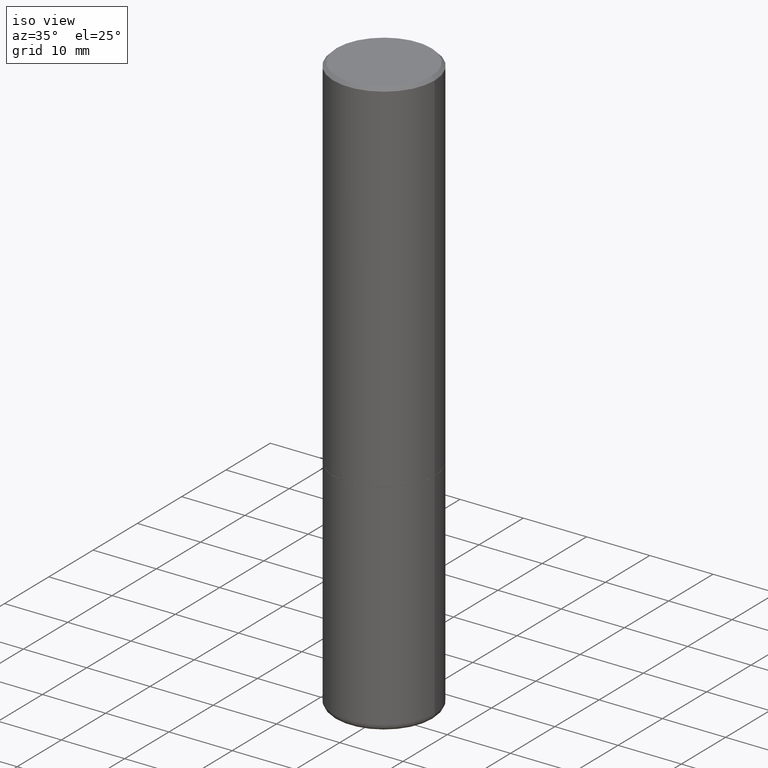
[diagram: clean part render]
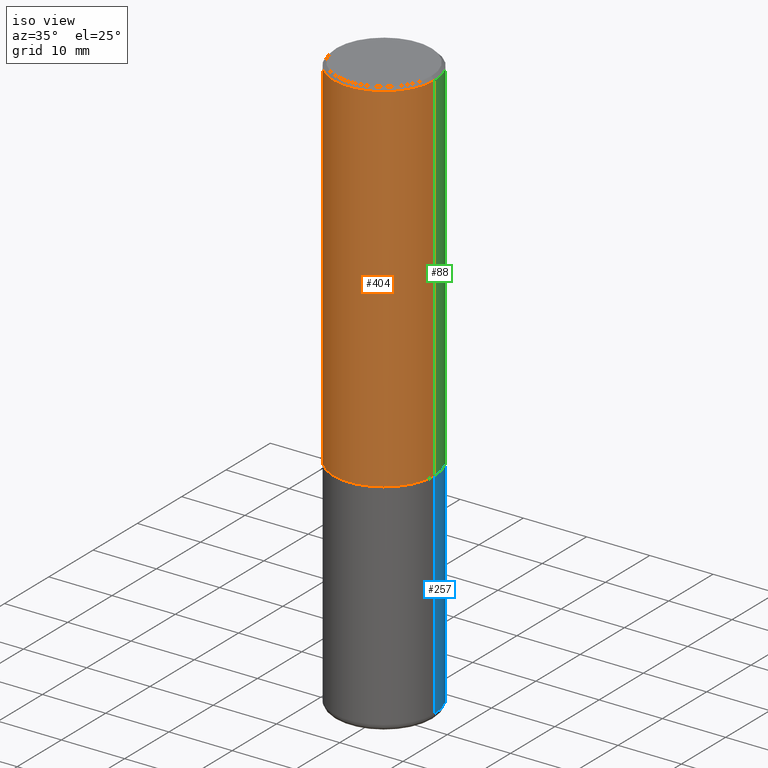
[diagram: same view with three faces highlighted in distinct colors, each labeled with its STEP entity id]
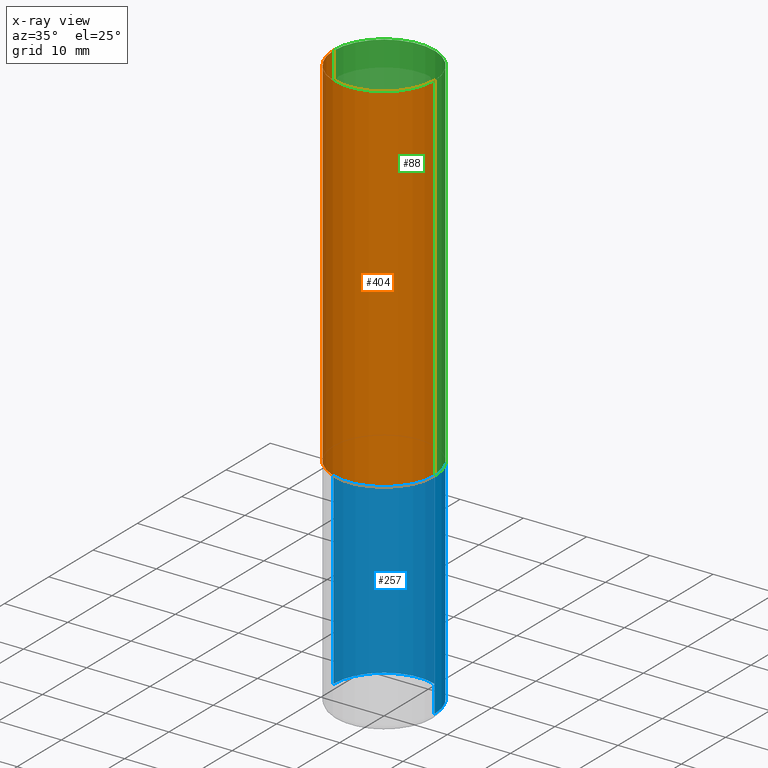
[diagram: x-ray of the same camera — body ghosted, the three highlighted faces saturated]
A machine part, iso view with three faces highlighted in distinct colors.
The next image is the same camera in x-ray (body ghosted, the three faces saturated) — at least one of them is partly hidden behind the body in this view.
Their STEP definitions:

[orange] entity #404 — the highlighted cylindrical surface (partial cylindrical patch) has radius 7.9997 mm, axis along (-0, 0, 1).
#1 = EDGE_CURVE ( 'NONE', #72, #77, #89, .T. ) ;
#6 = FACE_OUTER_BOUND ( 'NONE', #403, .T. ) ;
#7 = VERTEX_POINT ( 'NONE', #310 ) ;
#15 = VECTOR ( 'NONE', #311, 39.37007874015748143 ) ;
#35 = DIRECTION ( 'NONE',  ( 1.000000000000000000, -6.982962677686266711E-15, 0.000000000000000000 ) ) ;
#39 = ORIENTED_EDGE ( 'NONE', *, *, #171, .T. ) ;
#45 = ORIENTED_EDGE ( 'NONE', *, *, #1, .F. ) ;
#50 = VERTEX_POINT ( 'NONE', #415 ) ;
#65 = CARTESIAN_POINT ( 'NONE',  ( 4.890937612370289799E-31, -6.982962677686315028E-17, -0.02000000000000006981 ) ) ;
#69 = AXIS2_PLACEMENT_3D ( 'NONE', #65, #263, #35 ) ;
#72 = VERTEX_POINT ( 'NONE', #380 ) ;
#77 = VERTEX_POINT ( 'NONE', #288 ) ;
#89 = LINE ( 'NONE', #191, #15 ) ;
#97 = CIRCLE ( 'NONE', #69, 0.3149500000000000077 ) ;
#103 = DIRECTION ( 'NONE',  ( -2.445468806185136597E-29, 3.491481338843145583E-15, 1.000000000000000000 ) ) ;
#119 = AXIS2_PLACEMENT_3D ( 'NONE', #184, #181, #408 ) ;
#133 = ORIENTED_EDGE ( 'NONE', *, *, #157, .T. ) ;
#135 = CARTESIAN_POINT ( 'NONE',  ( 0.000000000000000000, 0.000000000000000000, 0.000000000000000000 ) ) ;
#139 = VECTOR ( 'NONE', #344, 39.37007874015748143 ) ;
#144 = LINE ( 'NONE', #151, #139 ) ;
#148 = CIRCLE ( 'NONE', #119, 0.3149500000000002853 ) ;
#151 = CARTESIAN_POINT ( 'NONE',  ( 0.3149500000000001743, -2.199284095337290660E-15, 1.535751875536930690E-29 ) ) ;
#157 = EDGE_CURVE ( 'NONE', #72, #7, #148, .T. ) ;
#171 = EDGE_CURVE ( 'NONE', #7, #50, #144, .T. ) ;
#179 = AXIS2_PLACEMENT_3D ( 'NONE', #135, #103, #237 ) ;
#181 = DIRECTION ( 'NONE',  ( -2.445468806185136597E-29, 3.491481338843145583E-15, 1.000000000000000000 ) ) ;
#184 = CARTESIAN_POINT ( 'NONE',  ( 5.485186532273261485E-29, -7.831392643025175821E-15, -2.242999999999999883 ) ) ;
#191 = CARTESIAN_POINT ( 'NONE',  ( -0.3149500000000001743, 2.237854346276436774E-15, -1.549218606675783237E-29 ) ) ;
#237 = DIRECTION ( 'NONE',  ( 1.000000000000000000, -6.982962677686265922E-15, 4.876176775795935232E-29 ) ) ;
#263 = DIRECTION ( 'NONE',  ( -2.445468806185136597E-29, 3.491481338843145583E-15, 1.000000000000000000 ) ) ;
#288 = CARTESIAN_POINT ( 'NONE',  ( -0.3149500000000000077, 2.129454468560426573E-15, -0.02000000000000006981 ) ) ;
#310 = CARTESIAN_POINT ( 'NONE',  ( 0.3149500000000002853, -1.003067673836246727E-14, -2.242999999999999883 ) ) ;
#311 = DIRECTION ( 'NONE',  ( -2.445468806185136877E-29, 3.491481338843145188E-15, 1.000000000000000000 ) ) ;
#320 = EDGE_CURVE ( 'NONE', #77, #50, #97, .T. ) ;
#344 = DIRECTION ( 'NONE',  ( -2.445468806185136877E-29, 3.491481338843145188E-15, 1.000000000000000000 ) ) ;
#366 = CYLINDRICAL_SURFACE ( 'NONE', #179, 0.3149500000000001743 ) ;
#380 = CARTESIAN_POINT ( 'NONE',  ( -0.3149500000000002853, -1.712756788624580222E-15, -2.242999999999999883 ) ) ;
#403 = EDGE_LOOP ( 'NONE', ( #45, #133, #39, #406 ) ) ;
#404 = ADVANCED_FACE ( 'NONE', ( #6 ), #366, .T. ) ;
#406 = ORIENTED_EDGE ( 'NONE', *, *, #320, .F. ) ;
#408 = DIRECTION ( 'NONE',  ( 1.000000000000000000, -6.982962677686267499E-15, 0.000000000000000000 ) ) ;
#415 = CARTESIAN_POINT ( 'NONE',  ( 0.3149500000000000077, -2.230543471175007450E-15, -0.02000000000000006981 ) ) ;

[blue] entity #257 — the highlighted cylindrical surface (partial cylindrical patch) has radius 7.9997 mm, axis along (-0, 0, 1).
#2 = LINE ( 'NONE', #32, #104 ) ;
#14 = EDGE_CURVE ( 'NONE', #284, #117, #289, .T. ) ;
#20 = DIRECTION ( 'NONE',  ( -2.445468806185136877E-29, 3.491481338843145188E-15, 1.000000000000000000 ) ) ;
#24 = CARTESIAN_POINT ( 'NONE',  ( 5.487632001079445967E-29, -7.834884124364017250E-15, -2.243999999999999773 ) ) ;
#32 = CARTESIAN_POINT ( 'NONE',  ( 0.3149500000000000077, -2.199284095337289871E-15, 1.535751875536930130E-29 ) ) ;
#33 = DIRECTION ( 'NONE',  ( -2.445468806185136597E-29, 3.491481338843145583E-15, 1.000000000000000000 ) ) ;
#43 = VECTOR ( 'NONE', #20, 39.37007874015748143 ) ;
#47 = ORIENTED_EDGE ( 'NONE', *, *, #76, .T. ) ;
#76 = EDGE_CURVE ( 'NONE', #208, #175, #244, .T. ) ;
#92 = DIRECTION ( 'NONE',  ( -2.445468806185136597E-29, 3.491481338843145583E-15, 1.000000000000000000 ) ) ;
#104 = VECTOR ( 'NONE', #294, 39.37007874015748143 ) ;
#106 = ORIENTED_EDGE ( 'NONE', *, *, #154, .T. ) ;
#111 = AXIS2_PLACEMENT_3D ( 'NONE', #24, #352, #213 ) ;
#117 = VERTEX_POINT ( 'NONE', #280 ) ;
#123 = AXIS2_PLACEMENT_3D ( 'NONE', #342, #92, #156 ) ;
#127 = FACE_OUTER_BOUND ( 'NONE', #206, .T. ) ;
#130 = CYLINDRICAL_SURFACE ( 'NONE', #255, 0.3149500000000000077 ) ;
#154 = EDGE_CURVE ( 'NONE', #175, #117, #321, .T. ) ;
#155 = CARTESIAN_POINT ( 'NONE',  ( 0.3149500000000000077, -1.003416821970130712E-14, -2.243999999999999773 ) ) ;
#156 = DIRECTION ( 'NONE',  ( 1.000000000000000000, -6.982962677686263555E-15, 0.000000000000000000 ) ) ;
#175 = VERTEX_POINT ( 'NONE', #373 ) ;
#206 = EDGE_LOOP ( 'NONE', ( #47, #106, #363, #396 ) ) ;
#208 = VERTEX_POINT ( 'NONE', #292 ) ;
#213 = DIRECTION ( 'NONE',  ( 1.000000000000000000, -6.982962677686266711E-15, 0.000000000000000000 ) ) ;
#225 = DIRECTION ( 'NONE',  ( 1.000000000000000000, -6.982962677686266711E-15, 4.876176775795936353E-29 ) ) ;
#244 = CIRCLE ( 'NONE', #123, 0.3149500000000000077 ) ;
#255 = AXIS2_PLACEMENT_3D ( 'NONE', #327, #33, #225 ) ;
#257 = ADVANCED_FACE ( 'NONE', ( #127 ), #130, .T. ) ;
#275 = EDGE_CURVE ( 'NONE', #208, #284, #2, .T. ) ;
#280 = CARTESIAN_POINT ( 'NONE',  ( -0.3149500000000000077, -7.933878238175299817E-15, -2.243999999999999773 ) ) ;
#284 = VERTEX_POINT ( 'NONE', #155 ) ;
#289 = CIRCLE ( 'NONE', #111, 0.3149500000000000077 ) ;
#292 = CARTESIAN_POINT ( 'NONE',  ( 0.3149500000000000077, -1.470786513987673949E-14, -3.582599999999999785 ) ) ;
#294 = DIRECTION ( 'NONE',  ( -2.445468806185136877E-29, 3.491481338843145188E-15, 1.000000000000000000 ) ) ;
#321 = LINE ( 'NONE', #346, #43 ) ;
#327 = CARTESIAN_POINT ( 'NONE',  ( 0.000000000000000000, 0.000000000000000000, 0.000000000000000000 ) ) ;
#342 = CARTESIAN_POINT ( 'NONE',  ( 8.761136545038868759E-29, -1.250858104453945120E-14, -3.582599999999999785 ) ) ;
#346 = CARTESIAN_POINT ( 'NONE',  ( -0.3149500000000000077, 2.237854346276435590E-15, -1.549218606675782676E-29 ) ) ;
#352 = DIRECTION ( 'NONE',  ( -2.445468806185136597E-29, 3.491481338843145583E-15, 1.000000000000000000 ) ) ;
#363 = ORIENTED_EDGE ( 'NONE', *, *, #14, .F. ) ;
#373 = CARTESIAN_POINT ( 'NONE',  ( -0.3149500000000000077, -1.027072669826301679E-14, -3.582599999999999785 ) ) ;
#396 = ORIENTED_EDGE ( 'NONE', *, *, #275, .F. ) ;

[green] entity #88 — the highlighted cylindrical surface (partial cylindrical patch) has radius 7.9997 mm, axis along (-0, 0, 1).
#1 = EDGE_CURVE ( 'NONE', #72, #77, #89, .T. ) ;
#7 = VERTEX_POINT ( 'NONE', #310 ) ;
#8 = AXIS2_PLACEMENT_3D ( 'NONE', #59, #283, #251 ) ;
#15 = VECTOR ( 'NONE', #311, 39.37007874015748143 ) ;
#21 = CARTESIAN_POINT ( 'NONE',  ( 0.000000000000000000, 0.000000000000000000, 0.000000000000000000 ) ) ;
#41 = ORIENTED_EDGE ( 'NONE', *, *, #109, .F. ) ;
#50 = VERTEX_POINT ( 'NONE', #415 ) ;
#59 = CARTESIAN_POINT ( 'NONE',  ( 4.890937612370289799E-31, -6.982962677686315028E-17, -0.02000000000000006981 ) ) ;
#63 = CIRCLE ( 'NONE', #295, 0.3149500000000002853 ) ;
#66 = CARTESIAN_POINT ( 'NONE',  ( 5.485186532273261485E-29, -7.831392643025175821E-15, -2.242999999999999883 ) ) ;
#72 = VERTEX_POINT ( 'NONE', #380 ) ;
#77 = VERTEX_POINT ( 'NONE', #288 ) ;
#79 = DIRECTION ( 'NONE',  ( -2.445468806185136597E-29, 3.491481338843145583E-15, 1.000000000000000000 ) ) ;
#84 = DIRECTION ( 'NONE',  ( 1.000000000000000000, -6.982962677686267499E-15, 0.000000000000000000 ) ) ;
#88 = ADVANCED_FACE ( 'NONE', ( #215 ), #150, .T. ) ;
#89 = LINE ( 'NONE', #191, #15 ) ;
#102 = EDGE_CURVE ( 'NONE', #7, #72, #63, .T. ) ;
#109 = EDGE_CURVE ( 'NONE', #50, #77, #379, .T. ) ;
#115 = ORIENTED_EDGE ( 'NONE', *, *, #102, .T. ) ;
#139 = VECTOR ( 'NONE', #344, 39.37007874015748143 ) ;
#144 = LINE ( 'NONE', #151, #139 ) ;
#147 = DIRECTION ( 'NONE',  ( -2.445468806185136597E-29, 3.491481338843145583E-15, 1.000000000000000000 ) ) ;
#150 = CYLINDRICAL_SURFACE ( 'NONE', #313, 0.3149500000000001743 ) ;
#151 = CARTESIAN_POINT ( 'NONE',  ( 0.3149500000000001743, -2.199284095337290660E-15, 1.535751875536930690E-29 ) ) ;
#171 = EDGE_CURVE ( 'NONE', #7, #50, #144, .T. ) ;
#191 = CARTESIAN_POINT ( 'NONE',  ( -0.3149500000000001743, 2.237854346276436774E-15, -1.549218606675783237E-29 ) ) ;
#196 = DIRECTION ( 'NONE',  ( 1.000000000000000000, -6.982962677686265922E-15, 4.876176775795935232E-29 ) ) ;
#211 = ORIENTED_EDGE ( 'NONE', *, *, #171, .F. ) ;
#215 = FACE_OUTER_BOUND ( 'NONE', #367, .T. ) ;
#251 = DIRECTION ( 'NONE',  ( 1.000000000000000000, -6.982962677686266711E-15, 0.000000000000000000 ) ) ;
#283 = DIRECTION ( 'NONE',  ( -2.445468806185136597E-29, 3.491481338843145583E-15, 1.000000000000000000 ) ) ;
#288 = CARTESIAN_POINT ( 'NONE',  ( -0.3149500000000000077, 2.129454468560426573E-15, -0.02000000000000006981 ) ) ;
#295 = AXIS2_PLACEMENT_3D ( 'NONE', #66, #79, #84 ) ;
#310 = CARTESIAN_POINT ( 'NONE',  ( 0.3149500000000002853, -1.003067673836246727E-14, -2.242999999999999883 ) ) ;
#311 = DIRECTION ( 'NONE',  ( -2.445468806185136877E-29, 3.491481338843145188E-15, 1.000000000000000000 ) ) ;
#313 = AXIS2_PLACEMENT_3D ( 'NONE', #21, #147, #196 ) ;
#315 = ORIENTED_EDGE ( 'NONE', *, *, #1, .T. ) ;
#344 = DIRECTION ( 'NONE',  ( -2.445468806185136877E-29, 3.491481338843145188E-15, 1.000000000000000000 ) ) ;
#367 = EDGE_LOOP ( 'NONE', ( #115, #315, #41, #211 ) ) ;
#379 = CIRCLE ( 'NONE', #8, 0.3149500000000000077 ) ;
#380 = CARTESIAN_POINT ( 'NONE',  ( -0.3149500000000002853, -1.712756788624580222E-15, -2.242999999999999883 ) ) ;
#415 = CARTESIAN_POINT ( 'NONE',  ( 0.3149500000000000077, -2.230543471175007450E-15, -0.02000000000000006981 ) ) ;